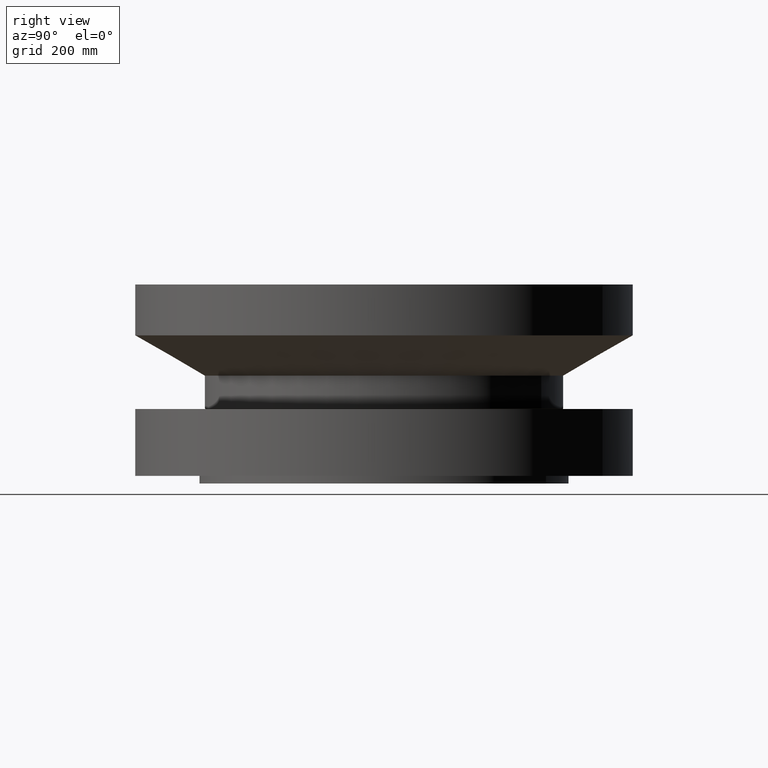
[diagram: clean part render]
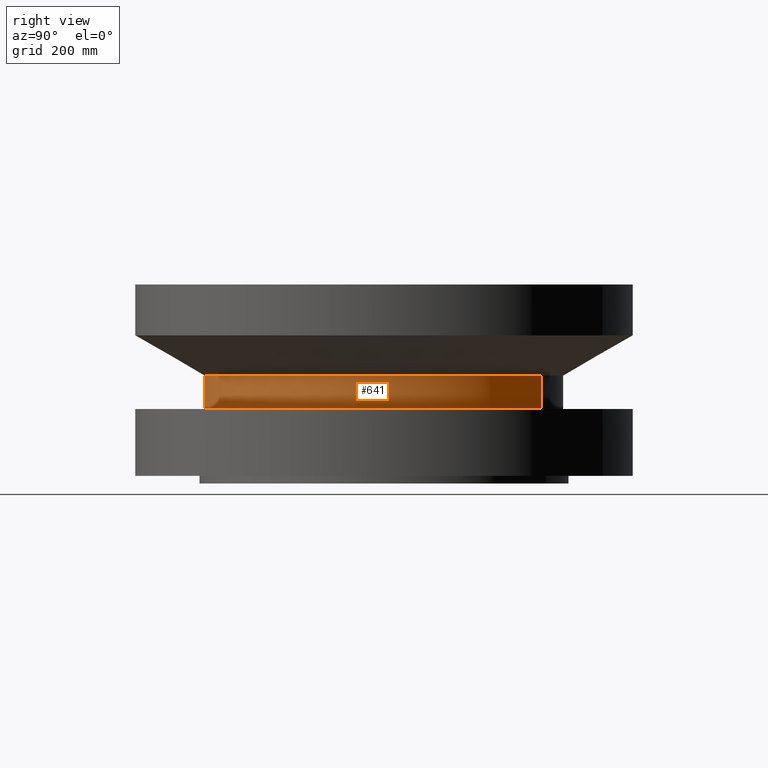
[diagram: same view with one face highlighted and labeled with its STEP entity id]
A machine part, right view. The second image highlights one B-rep face of the part: STEP entity #641.
In plain terms, the highlighted cylindrical surface (partial cylindrical patch) has radius 374.65 mm, axis along (0, 0, -1).
Its self-contained STEP definition (entity closure, byte-faithful):
#582=AXIS2_PLACEMENT_3D('Circle Axis2P3D',#580,#581,$) ;
#614=AXIS2_PLACEMENT_3D('Cylinder Axis2P3D',#611,#612,#613) ;
#625=AXIS2_PLACEMENT_3D('Circle Axis2P3D',#623,#624,$) ;
#577=CARTESIAN_POINT('Vertex',(7.07152669444,12.9443427879,5.54098076214)) ;
#580=CARTESIAN_POINT('Axis2P3D Location',(0.,0.,5.54098076214)) ;
#584=CARTESIAN_POINT('Vertex',(-7.07152669444,-12.9443427879,5.54098076214)) ;
#611=CARTESIAN_POINT('Axis2P3D Location',(0.,0.,7.56250000003)) ;
#616=CARTESIAN_POINT('Line Origine',(7.07152669444,12.9443427879,6.89549038108)) ;
#620=CARTESIAN_POINT('Vertex',(7.07152669444,12.9443427879,8.25000000003)) ;
#623=CARTESIAN_POINT('Axis2P3D Location',(0.,0.,8.25000000003)) ;
#627=CARTESIAN_POINT('Vertex',(-7.07152669444,-12.9443427879,8.25000000003)) ;
#630=CARTESIAN_POINT('Line Origine',(-7.07152669444,-12.9443427879,6.89549038108)) ;
#581=DIRECTION('Axis2P3D Direction',(-0.,0.,0.0393700787402)) ;
#612=DIRECTION('Axis2P3D Direction',(0.,0.,-0.0393700787402)) ;
#613=DIRECTION('Axis2P3D XDirection',(-0.0188750212049,-0.0345504945626,0.)) ;
#617=DIRECTION('Vector Direction',(0.,0.,-0.0393700787402)) ;
#624=DIRECTION('Axis2P3D Direction',(0.,0.,-0.0393700787402)) ;
#631=DIRECTION('Vector Direction',(0.,0.,-0.0393700787402)) ;
#618=VECTOR('Line Direction',#617,0.0393700787402) ;
#632=VECTOR('Line Direction',#631,0.0393700787402) ;
#636=ORIENTED_EDGE('',*,*,#586,.F.) ;
#637=ORIENTED_EDGE('',*,*,#622,.T.) ;
#638=ORIENTED_EDGE('',*,*,#629,.T.) ;
#639=ORIENTED_EDGE('',*,*,#634,.F.) ;
#641=ADVANCED_FACE('PartBody',(#640),#615,.T.) ;
#583=CIRCLE('generated circle',#582,14.7500000001) ;
#626=CIRCLE('generated circle',#625,14.7500000001) ;
#615=CYLINDRICAL_SURFACE('generated cylinder',#614,14.7500000001) ;
#586=EDGE_CURVE('',#578,#585,#583,.F.) ;
#622=EDGE_CURVE('',#578,#621,#619,.F.) ;
#629=EDGE_CURVE('',#621,#628,#626,.T.) ;
#634=EDGE_CURVE('',#585,#628,#633,.F.) ;
#635=EDGE_LOOP('',(#636,#637,#638,#639)) ;
#640=FACE_OUTER_BOUND('',#635,.T.) ;
#619=LINE('Line',#616,#618) ;
#633=LINE('Line',#630,#632) ;
#578=VERTEX_POINT('',#577) ;
#585=VERTEX_POINT('',#584) ;
#621=VERTEX_POINT('',#620) ;
#628=VERTEX_POINT('',#627) ;